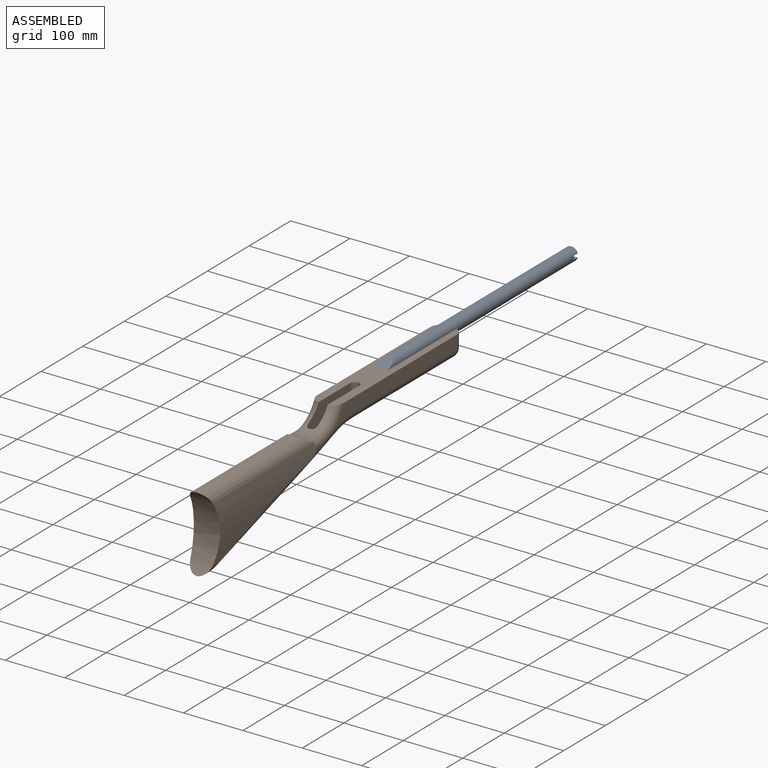
[diagram: assembled view]
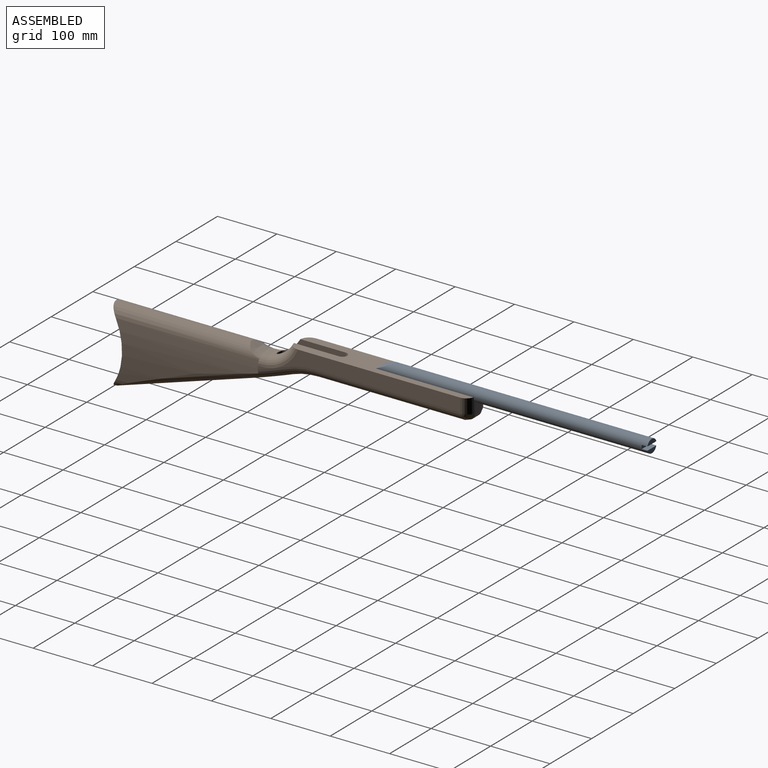
[diagram: assembled view, second angle]
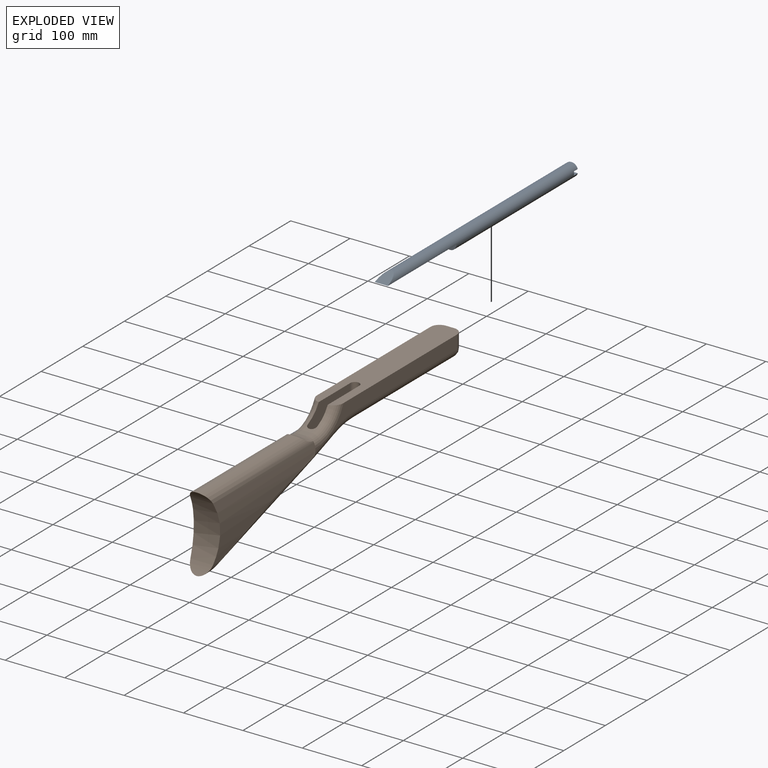
[diagram: exploded view]
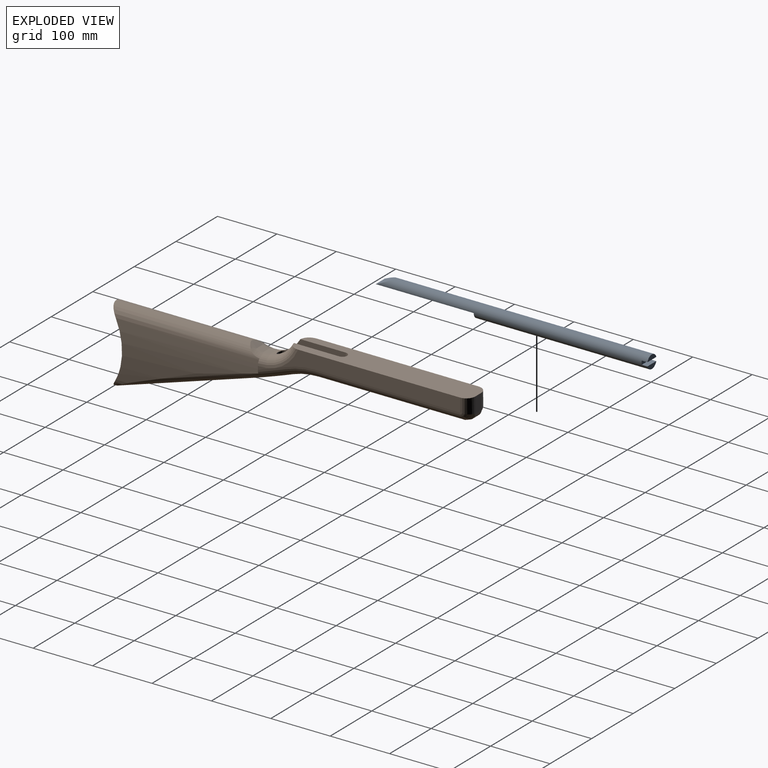
[diagram: exploded view, second angle]
ASSEMBLY  parts=2 mates=2
PART A: 9 faces, bbox 22.2x457.2x22.2 mm
  f0: cylinder r=11.11mm len=457.2mm, axis (0,1,0), area 25471.6mm2, adj f1,f2,f3,f4,f5,f6,f7,f8
  f1: plane 21.3x7.94mm, normal (0,1,0), area 124.4mm2, adj f0,f6
  f2: plane 21.3x7.94mm, normal (0,1,0), area 124.4mm2, adj f0,f5
  f3: plane 25.4x22.23mm, normal (0,-0.4,0.92), area 483.9mm2, adj f0,f8
  f4: plane 22.23x6.35mm, normal (0,1,0), area 139.2mm2, adj f0,f5,f6
  f5: plane 21.3x9.53mm, normal (0,0,1), area 202.9mm2, adj f0,f2,f4
  f6: plane 21.3x9.53mm, normal (0,0,-1), area 202.9mm2, adj f0,f1,f4
  f7: plane 22.23x11.11mm, normal (0,-1,0), area 194mm2, adj f0,f8
  f8: plane 165.1x22.23mm, normal (0,0,-1), area 3669.3mm2, adj f0,f3,f7
PART B: 35 faces, bbox 151.8x44.5x610.2 mm
  f0: torus R=68.58mm, axis (0,-1,0), area 1885.6mm2, adj f3,f5,f10,f26,f29,f33,f34
  f1: torus R=142.24mm, axis (0,-1,0), area 1115.7mm2, adj f2,f5,f22,f33
  f2: torus R=1508.76mm, axis (0,-1,0), area 1734.5mm2, adj f1,f5,f8,f14,f25,f29,f33,f34
  f3: cylinder r=53.34mm len=47.76mm, axis (0,1,0), area 637mm2, adj f0,f9,f26,f34
  f4: plane 231x73.64mm, normal (-0.95,0,0.3), area 3367.2mm2, adj f7,f8,f14,f24,f28
  f5: plane 340.36x48.79mm, normal (0,-1,0), area 6602.7mm2, adj f0,f1,f2,f10,f20,f22,f29
  f6: plane 340.36x48.79mm, normal (0,1,0), area 6602.7mm2, adj f9,f10,f15,f16,f17,f19,f27
  f7: cylinder r=15.24mm len=231.51mm, axis (-0.3,0,-0.95), area 4425mm2, adj f4,f15,f23,f28
  f8: cylinder r=15.24mm len=231.51mm, axis (0.3,0,0.95), area 4424.9mm2, adj f2,f4,f24,f25
  f9: torus R=68.58mm, axis (0,-1,0), area 1885.7mm2, adj f3,f6,f10,f26,f27,f31,f34
  f10: plane 304.79x44.45mm, normal (1,0,0), area 12084.2mm2, adj f0,f5,f6,f9,f11,f19,f20,f31
  f11: plane 25.4x13.97mm, normal (0,0,1), area 354.8mm2, adj f10,f12,f19,f20
  f12: cylinder r=12.7mm len=13.97mm, axis (0,1,0), area 278.7mm2, adj f11,f13,f18,f21
  f13: plane 212.85x13.97mm, normal (-1,0,0), area 2927.5mm2, adj f12,f17,f22,f32
  f14: cylinder r=1524mm len=45.35mm, axis (0,1,0), area 619.6mm2, adj f2,f4,f15,f34
  f15: torus R=1508.76mm, axis (0,-1,0), area 1734.5mm2, adj f6,f7,f14,f16,f23,f27,f31,f34
  f16: torus R=142.24mm, axis (0,-1,0), area 1115.7mm2, adj f6,f15,f17,f31
  f17: cylinder r=15.24mm len=245.91mm, axis (0,0,-1), area 5844.4mm2, adj f6,f13,f16,f18,f31,f32
  f18: bspline ~18.84x15.24mm, area 309.1mm2, adj f12,f17,f19
  f19: cylinder r=15.24mm len=25.4mm, axis (-1,0,0), area 586mm2, adj f6,f10,f11,f18
  f20: cylinder r=15.24mm len=25.4mm, axis (1,0,0), area 586mm2, adj f5,f10,f11,f21
  f21: bspline ~18.84x15.24mm, area 309.1mm2, adj f12,f20,f22
  f22: cylinder r=15.24mm len=245.91mm, axis (0,0,1), area 5844.4mm2, adj f1,f5,f13,f21,f32,f33
  f23: cylinder r=347.5mm len=241.42mm, axis (0,0,-1), area 12783.7mm2, adj f7,f15,f26,f27,f28,f30
  f24: cylinder r=19.23mm len=32.66mm, axis (0,0,-1), area 206.6mm2, adj f4,f8,f25,f30
  f25: cylinder r=347.5mm len=241.42mm, axis (0,0,-1), area 12783.7mm2, adj f2,f8,f24,f26,f29,f30
  f26: cylinder r=19.23mm len=254mm, axis (0,0,-1), area 12825.1mm2, adj f0,f3,f9,f23,f25,f27,f29,f30
  f27: plane 21.93x3.8mm, normal (0,0,-1), area 34.6mm2, adj f6,f9,f15,f23,f26
  f28: cylinder r=19.23mm len=32.66mm, axis (0,0,-1), area 206.6mm2, adj f4,f7,f23,f30
  f29: plane 21.93x3.8mm, normal (0,0,-1), area 34.6mm2, adj f0,f2,f5,f25,f26
  f30: cylinder r=92.08mm len=127mm, axis (0,1,0), area 5346.6mm2, adj f23,f24,f25,f26,f28
  f31: plane 101.6x56.07mm, normal (0,-1,0), area 3978.2mm2, adj f9,f10,f15,f16,f17,f32,f34
  f32: cylinder r=7.62mm len=38.1mm, axis (1,0,0), area 912mm2, adj f10,f13,f17,f22,f31,f33
  f33: plane 101.6x56.07mm, normal (0,1,0), area 3978.2mm2, adj f0,f1,f2,f10,f22,f32,f34
  f34: cylinder r=7.62mm len=35.42mm, axis (1,0,0), area 782mm2, adj f0,f2,f3,f9,f14,f15,f31,f33
PLACE A t=(31.43,73.44,254.51)mm
PLACE B rot(axis=(-0.58,-0.58,-0.58),120deg) t=(53.8,-397.29,147.23)mm
MATE planar B.f10 <-> A.f8  axis (0,0,1) through (31.57,-359.38,254.51)mm
MATE planar B.f11 <-> A.f7  axis (0,1,0) through (31.57,-218.66,241.81)mm
